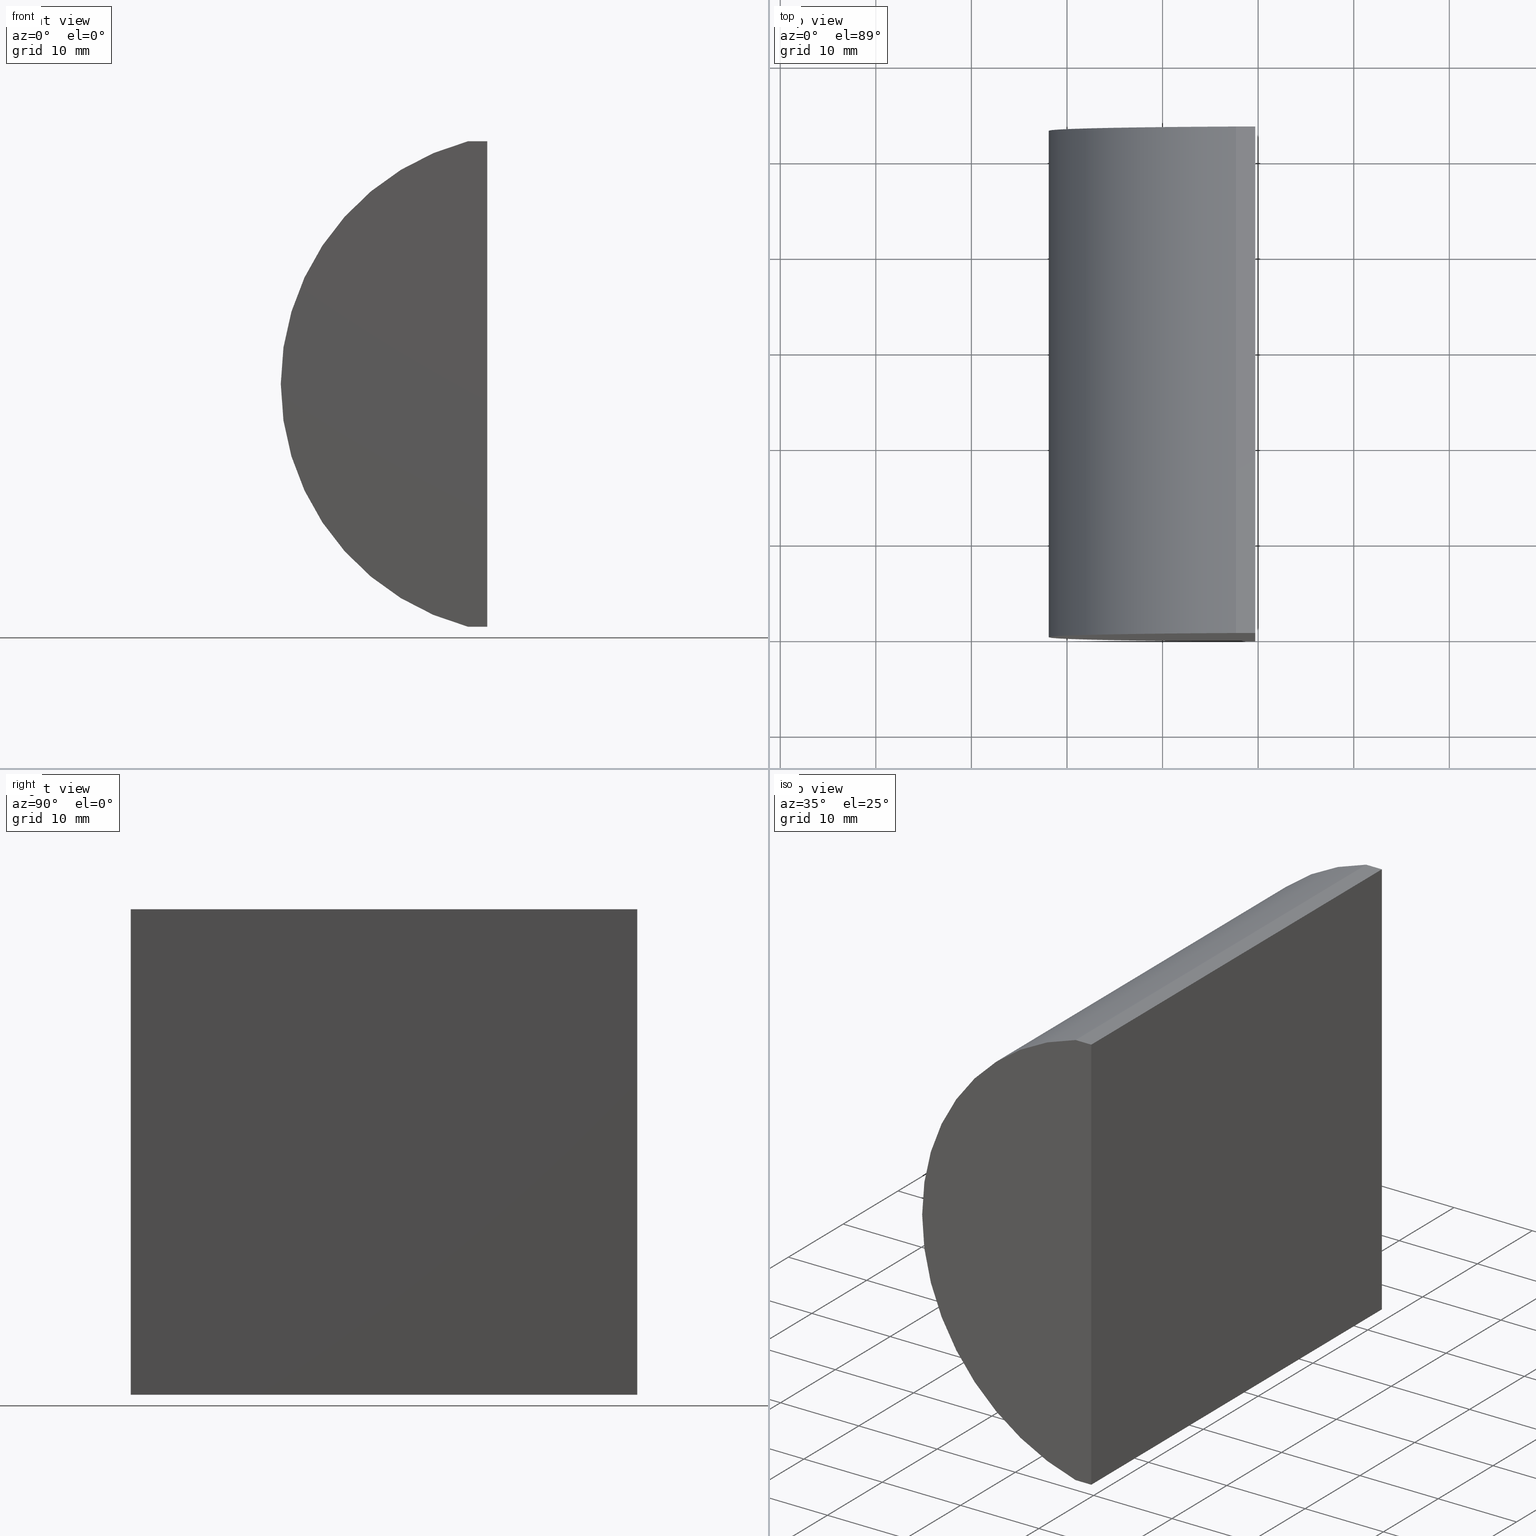
[diagram: canonical four-view strip — front | top / right | iso, engineering-drawing reading convention]
A machine part, canonical four-view strip (front | top / right | iso — engineering-drawing reading convention). The complete STEP part file that produces these views, byte-faithful:
ISO-10303-21;
HEADER;
FILE_DESCRIPTION (( 'STEP AP214' ),
    '1' );
FILE_NAME ('155056.STEP',
    '2019-06-18T07:11:53',
    ( 'user' ),
    ( '΢���й�' ),
    'SwSTEP 2.0',
    'SolidWorks 2016',
    '' );
FILE_SCHEMA (( 'AUTOMOTIVE_DESIGN' ));
ENDSEC;

DATA;
#1 = APPLICATION_PROTOCOL_DEFINITION ( 'draft international standard', 'automotive_design', 1998, #155 ) ;
#2 = DIRECTION ( 'NONE',  ( -1.000000000000000000, -0.0000000000000000000, -0.0000000000000000000 ) ) ;
#3 = ADVANCED_FACE ( 'NONE', ( #30 ), #135, .F. ) ;
#4 = DIRECTION ( 'NONE',  ( -0.0000000000000000000, -1.000000000000000000, -0.0000000000000000000 ) ) ;
#5 = FACE_OUTER_BOUND ( 'NONE', #68, .T. ) ;
#6 = ORIENTED_EDGE ( 'NONE', *, *, #182, .T. ) ;
#7 = VECTOR ( 'NONE', #161, 1000.000000000000000 ) ;
#8 = LINE ( 'NONE', #38, #40 ) ;
#9 = VERTEX_POINT ( 'NONE', #184 ) ;
#10 = VERTEX_POINT ( 'NONE', #106 ) ;
#11 = DIRECTION ( 'NONE',  ( -1.000000000000000000, -0.0000000000000000000, -0.0000000000000000000 ) ) ;
#12 = ADVANCED_BREP_SHAPE_REPRESENTATION ( '155056', ( #17, #132 ), #105 ) ;
#13 = DIRECTION ( 'NONE',  ( 0.0000000000000000000, 1.000000000000000000, 0.0000000000000000000 ) ) ;
#14 = DIRECTION ( 'NONE',  ( 0.0000000000000000000, 0.0000000000000000000, -1.000000000000000000 ) ) ;
#15 = DIRECTION ( 'NONE',  ( 0.0000000000000000000, -0.0000000000000000000, 1.000000000000000000 ) ) ;
#16 = EDGE_CURVE ( 'NONE', #9, #82, #98, .T. ) ;
#17 = MANIFOLD_SOLID_BREP ( '͹̨-����1', #66 ) ;
#18 = DIRECTION ( 'NONE',  ( -3.062657711647045300E-016, -0.0000000000000000000, -1.000000000000000000 ) ) ;
#19 = PRODUCT_DEFINITION_SHAPE ( 'NONE', 'NONE',  #191 ) ;
#20 = APPLICATION_PROTOCOL_DEFINITION ( 'draft international standard', 'automotive_design', 1998, #91 ) ;
#21 = EDGE_CURVE ( 'NONE', #26, #204, #196, .T. ) ;
#22 = MECHANICAL_DESIGN_GEOMETRIC_PRESENTATION_REPRESENTATION (  '', ( #152 ), #147 ) ;
#23 = ADVANCED_FACE ( 'NONE', ( #158 ), #122, .T. ) ;
#24 = EDGE_LOOP ( 'NONE', ( #54, #116, #61, #77 ) ) ;
#25 = ORIENTED_EDGE ( 'NONE', *, *, #27, .T. ) ;
#26 = VERTEX_POINT ( 'NONE', #50 ) ;
#27 = EDGE_CURVE ( 'NONE', #82, #26, #104, .T. ) ;
#28 = CARTESIAN_POINT ( 'NONE',  ( -2.310198878758567900, 53.00000000000000000, 25.39999999999999900 ) ) ;
#29 = VECTOR ( 'NONE', #168, 1000.000000000000000 ) ;
#30 = FACE_OUTER_BOUND ( 'NONE', #24, .T. ) ;
#31 = DIRECTION ( 'NONE',  ( 1.000000000000000000, 0.0000000000000000000, 0.0000000000000000000 ) ) ;
#32 =( NAMED_UNIT ( * ) PLANE_ANGLE_UNIT ( ) SI_UNIT ( $, .RADIAN. ) );
#33 = EDGE_CURVE ( 'NONE', #142, #10, #58, .T. ) ;
#34 = LINE ( 'NONE', #143, #138 ) ;
#35 = EDGE_LOOP ( 'NONE', ( #131, #100, #69, #93 ) ) ;
#36 = DIRECTION ( 'NONE',  ( -0.0000000000000000000, -1.000000000000000000, -0.0000000000000000000 ) ) ;
#37 = PLANE ( 'NONE',  #84 ) ;
#38 = CARTESIAN_POINT ( 'NONE',  ( -2.310198878758567900, 0.0000000000000000000, 25.39999999999999900 ) ) ;
#39 = VERTEX_POINT ( 'NONE', #136 ) ;
#40 = VECTOR ( 'NONE', #86, 1000.000000000000000 ) ;
#41 = PLANE ( 'NONE',  #120 ) ;
#42 = ADVANCED_FACE ( 'NONE', ( #203 ), #41, .F. ) ;
#43 = FACE_OUTER_BOUND ( 'NONE', #97, .T. ) ;
#44 = ORIENTED_EDGE ( 'NONE', *, *, #182, .F. ) ;
#45 = AXIS2_PLACEMENT_3D ( 'NONE', #200, #13, #63 ) ;
#46 = LINE ( 'NONE', #112, #7 ) ;
#47 = SURFACE_STYLE_USAGE ( .BOTH. , #48 ) ;
#48 = SURFACE_SIDE_STYLE ('',( #149 ) ) ;
#49 = FILL_AREA_STYLE_COLOUR ( '', #173 ) ;
#50 = CARTESIAN_POINT ( 'NONE',  ( -0.3047956651487313000, 53.00000000000000000, 25.39999999999999900 ) ) ;
#51 = PLANE ( 'NONE',  #141 ) ;
#52 = PRESENTATION_LAYER_ASSIGNMENT (  '', '', ( #71 ) ) ;
#53 = EDGE_LOOP ( 'NONE', ( #183, #25, #159, #181 ) ) ;
#54 = ORIENTED_EDGE ( 'NONE', *, *, #65, .F. ) ;
#55 = DIRECTION ( 'NONE',  ( 3.062657711647045300E-016, 0.0000000000000000000, 1.000000000000000000 ) ) ;
#56 = CARTESIAN_POINT ( 'NONE',  ( -2.310198878758567900, 53.00000000000000000, 25.39999999999999900 ) ) ;
#57 = UNCERTAINTY_MEASURE_WITH_UNIT (LENGTH_MEASURE( 1.000000000000000100E-005 ), #107, 'distance_accuracy_value', 'NONE');
#58 = LINE ( 'NONE', #121, #96 ) ;
#59 = CARTESIAN_POINT ( 'NONE',  ( 4.355204334851265500, 0.0000000000000000000, 4.286263797015675000E-017 ) ) ;
#60 = LINE ( 'NONE', #28, #85 ) ;
#61 = ORIENTED_EDGE ( 'NONE', *, *, #114, .F. ) ;
#62 = VERTEX_POINT ( 'NONE', #186 ) ;
#63 = DIRECTION ( 'NONE',  ( 0.0000000000000000000, 0.0000000000000000000, 1.000000000000000000 ) ) ;
#64 = DIRECTION ( 'NONE',  ( 0.0000000000000000000, 0.0000000000000000000, 1.000000000000000000 ) ) ;
#65 = EDGE_CURVE ( 'NONE', #10, #39, #81, .T. ) ;
#66 = CLOSED_SHELL ( 'NONE', ( #23, #128, #42, #133, #79, #3 ) ) ;
#67 = CARTESIAN_POINT ( 'NONE',  ( 4.355204334851265500, 53.00000000000000000, 4.286263797015675000E-017 ) ) ;
#68 = EDGE_LOOP ( 'NONE', ( #109, #148, #111, #118 ) ) ;
#69 = ORIENTED_EDGE ( 'NONE', *, *, #16, .F. ) ;
#70 = UNCERTAINTY_MEASURE_WITH_UNIT (LENGTH_MEASURE( 1.000000000000000100E-005 ), #137, 'distance_accuracy_value', 'NONE');
#71 = STYLED_ITEM ( 'NONE', ( #129 ), #17 ) ;
#72 = PRODUCT_CONTEXT ( 'NONE', #91, 'mechanical' ) ;
#73 = DIRECTION ( 'NONE',  ( -0.0000000000000000000, -1.000000000000000000, -0.0000000000000000000 ) ) ;
#74 = ORIENTED_EDGE ( 'NONE', *, *, #201, .F. ) ;
#75 = CARTESIAN_POINT ( 'NONE',  ( -0.3047956651487468400, 53.00000000000000000, -25.39999999999999900 ) ) ;
#76 = DIRECTION ( 'NONE',  ( 0.0000000000000000000, 0.0000000000000000000, 1.000000000000000000 ) ) ;
#77 = ORIENTED_EDGE ( 'NONE', *, *, #130, .F. ) ;
#78 = CARTESIAN_POINT ( 'NONE',  ( 4.355204334851265500, 53.00000000000000000, 4.286263797015675000E-017 ) ) ;
#79 = ADVANCED_FACE ( 'NONE', ( #162 ), #37, .T. ) ;
#80 = CARTESIAN_POINT ( 'NONE',  ( -2.310198878758607000, 53.00000000000000000, -25.39999999999999900 ) ) ;
#81 = CIRCLE ( 'NONE', #185, 26.26000000000001200 ) ;
#82 = VERTEX_POINT ( 'NONE', #56 ) ;
#83 = DIRECTION ( 'NONE',  ( 0.0000000000000000000, 1.000000000000000000, 0.0000000000000000000 ) ) ;
#84 = AXIS2_PLACEMENT_3D ( 'NONE', #78, #113, #15 ) ;
#85 = VECTOR ( 'NONE', #73, 1000.000000000000000 ) ;
#86 = DIRECTION ( 'NONE',  ( 1.000000000000000000, 0.0000000000000000000, 0.0000000000000000000 ) ) ;
#87 = CARTESIAN_POINT ( 'NONE',  ( -0.3047956651487468400, 53.00000000000000000, -25.39999999999999900 ) ) ;
#88 = FILL_AREA_STYLE ('',( #49 ) ) ;
#89 = VECTOR ( 'NONE', #99, 1000.000000000000000 ) ;
#90 = EDGE_LOOP ( 'NONE', ( #187, #74, #198, #6 ) ) ;
#91 = APPLICATION_CONTEXT ( 'automotive_design' ) ;
#92 = DIRECTION ( 'NONE',  ( -1.000000000000000000, 0.0000000000000000000, 3.062657711647045300E-016 ) ) ;
#93 = ORIENTED_EDGE ( 'NONE', *, *, #170, .T. ) ;
#94 = LINE ( 'NONE', #169, #89 ) ;
#95 = DIRECTION ( 'NONE',  ( 1.000000000000000000, 0.0000000000000000000, 0.0000000000000000000 ) ) ;
#96 = VECTOR ( 'NONE', #11, 1000.000000000000000 ) ;
#97 = EDGE_LOOP ( 'NONE', ( #197, #44, #139, #199 ) ) ;
#98 = CIRCLE ( 'NONE', #45, 26.26000000000001200 ) ;
#99 = DIRECTION ( 'NONE',  ( -3.062657711647045300E-016, -0.0000000000000000000, -1.000000000000000000 ) ) ;
#100 = ORIENTED_EDGE ( 'NONE', *, *, #189, .F. ) ;
#101 =( NAMED_UNIT ( * ) SI_UNIT ( $, .STERADIAN. ) SOLID_ANGLE_UNIT ( ) );
#102 =( NAMED_UNIT ( * ) SI_UNIT ( $, .STERADIAN. ) SOLID_ANGLE_UNIT ( ) );
#103 = CARTESIAN_POINT ( 'NONE',  ( -0.3047956651487468400, 0.0000000000000000000, -25.39999999999999900 ) ) ;
#104 = LINE ( 'NONE', #157, #172 ) ;
#105 =( GEOMETRIC_REPRESENTATION_CONTEXT ( 3 ) GLOBAL_UNCERTAINTY_ASSIGNED_CONTEXT ( ( #160 ) ) GLOBAL_UNIT_ASSIGNED_CONTEXT ( ( #176, #177, #101 ) ) REPRESENTATION_CONTEXT ( 'NONE', 'WORKASPACE' ) );
#106 = CARTESIAN_POINT ( 'NONE',  ( -2.310198878758607000, 0.0000000000000000000, -25.39999999999999900 ) ) ;
#107 =( LENGTH_UNIT ( ) NAMED_UNIT ( * ) SI_UNIT ( .MILLI., .METRE. ) );
#108 = FILL_AREA_STYLE_COLOUR ( '', #179 ) ;
#109 = ORIENTED_EDGE ( 'NONE', *, *, #33, .T. ) ;
#110 = CARTESIAN_POINT ( 'NONE',  ( -0.3047956651487468400, 53.00000000000000000, -25.39999999999999900 ) ) ;
#111 = ORIENTED_EDGE ( 'NONE', *, *, #119, .F. ) ;
#112 = CARTESIAN_POINT ( 'NONE',  ( -0.3047956651487468400, 53.00000000000000000, -25.39999999999999900 ) ) ;
#113 = DIRECTION ( 'NONE',  ( 0.0000000000000000000, 1.000000000000000000, 0.0000000000000000000 ) ) ;
#114 = EDGE_CURVE ( 'NONE', #62, #142, #94, .T. ) ;
#115 = PRODUCT_DEFINITION_FORMATION_WITH_SPECIFIED_SOURCE ( '�κ�', '', #190, .NOT_KNOWN. ) ;
#116 = ORIENTED_EDGE ( 'NONE', *, *, #33, .F. ) ;
#117 = VECTOR ( 'NONE', #18, 1000.000000000000000 ) ;
#118 = ORIENTED_EDGE ( 'NONE', *, *, #201, .T. ) ;
#119 = EDGE_CURVE ( 'NONE', #204, #9, #34, .T. ) ;
#120 = AXIS2_PLACEMENT_3D ( 'NONE', #87, #92, #55 ) ;
#121 = CARTESIAN_POINT ( 'NONE',  ( -2.310198878758607000, 0.0000000000000000000, -25.39999999999999900 ) ) ;
#122 = CYLINDRICAL_SURFACE ( 'NONE', #171, 26.26000000000001200 ) ;
#123 =( NAMED_UNIT ( * ) PLANE_ANGLE_UNIT ( ) SI_UNIT ( $, .RADIAN. ) );
#124 = SHAPE_DEFINITION_REPRESENTATION ( #19, #12 ) ;
#125 = PRESENTATION_STYLE_ASSIGNMENT (( #164 ) ) ;
#126 = FILL_AREA_STYLE ('',( #108 ) ) ;
#127 = CARTESIAN_POINT ( 'NONE',  ( -0.3047956651487313000, 53.00000000000000000, 25.39999999999999900 ) ) ;
#128 = ADVANCED_FACE ( 'NONE', ( #43 ), #51, .F. ) ;
#129 = PRESENTATION_STYLE_ASSIGNMENT (( #47 ) ) ;
#130 = EDGE_CURVE ( 'NONE', #39, #62, #8, .T. ) ;
#131 = ORIENTED_EDGE ( 'NONE', *, *, #65, .T. ) ;
#132 = AXIS2_PLACEMENT_3D ( 'NONE', #175, #140, #31 ) ;
#133 = ADVANCED_FACE ( 'NONE', ( #5 ), #165, .F. ) ;
#134 = DIRECTION ( 'NONE',  ( 0.0000000000000000000, 0.0000000000000000000, -1.000000000000000000 ) ) ;
#135 = PLANE ( 'NONE',  #174 ) ;
#136 = CARTESIAN_POINT ( 'NONE',  ( -2.310198878758567900, 0.0000000000000000000, 25.39999999999999900 ) ) ;
#137 =( LENGTH_UNIT ( ) NAMED_UNIT ( * ) SI_UNIT ( .MILLI., .METRE. ) );
#138 = VECTOR ( 'NONE', #2, 1000.000000000000000 ) ;
#139 = ORIENTED_EDGE ( 'NONE', *, *, #27, .F. ) ;
#140 = DIRECTION ( 'NONE',  ( 0.0000000000000000000, 0.0000000000000000000, 1.000000000000000000 ) ) ;
#141 = AXIS2_PLACEMENT_3D ( 'NONE', #188, #14, #144 ) ;
#142 = VERTEX_POINT ( 'NONE', #103 ) ;
#143 = CARTESIAN_POINT ( 'NONE',  ( -2.310198878758607000, 53.00000000000000000, -25.39999999999999900 ) ) ;
#144 = DIRECTION ( 'NONE',  ( -1.000000000000000000, 0.0000000000000000000, -0.0000000000000000000 ) ) ;
#145 = CARTESIAN_POINT ( 'NONE',  ( 4.355204334851265500, 0.0000000000000000000, 4.286263797015675000E-017 ) ) ;
#146 =( GEOMETRIC_REPRESENTATION_CONTEXT ( 3 ) GLOBAL_UNCERTAINTY_ASSIGNED_CONTEXT ( ( #57 ) ) GLOBAL_UNIT_ASSIGNED_CONTEXT ( ( #107, #32, #102 ) ) REPRESENTATION_CONTEXT ( 'NONE', 'WORKASPACE' ) );
#147 =( GEOMETRIC_REPRESENTATION_CONTEXT ( 3 ) GLOBAL_UNCERTAINTY_ASSIGNED_CONTEXT ( ( #70 ) ) GLOBAL_UNIT_ASSIGNED_CONTEXT ( ( #137, #123, #163 ) ) REPRESENTATION_CONTEXT ( 'NONE', 'WORKASPACE' ) );
#148 = ORIENTED_EDGE ( 'NONE', *, *, #170, .F. ) ;
#149 = SURFACE_STYLE_FILL_AREA ( #126 ) ;
#150 = CARTESIAN_POINT ( 'NONE',  ( -2.310198878758607000, 53.00000000000000000, -25.39999999999999900 ) ) ;
#151 = LINE ( 'NONE', #127, #29 ) ;
#152 = STYLED_ITEM ( 'NONE', ( #125 ), #12 ) ;
#153 = PRODUCT_DEFINITION_CONTEXT ( 'detailed design', #155, 'design' ) ;
#154 = SURFACE_SIDE_STYLE ('',( #195 ) ) ;
#155 = APPLICATION_CONTEXT ( 'automotive_design' ) ;
#156 = VECTOR ( 'NONE', #36, 1000.000000000000000 ) ;
#157 = CARTESIAN_POINT ( 'NONE',  ( -2.310198878758567900, 53.00000000000000000, 25.39999999999999900 ) ) ;
#158 = FACE_OUTER_BOUND ( 'NONE', #35, .T. ) ;
#159 = ORIENTED_EDGE ( 'NONE', *, *, #21, .T. ) ;
#160 = UNCERTAINTY_MEASURE_WITH_UNIT (LENGTH_MEASURE( 1.000000000000000100E-005 ), #176, 'distance_accuracy_value', 'NONE');
#161 = DIRECTION ( 'NONE',  ( -0.0000000000000000000, -1.000000000000000000, -0.0000000000000000000 ) ) ;
#162 = FACE_OUTER_BOUND ( 'NONE', #53, .T. ) ;
#163 =( NAMED_UNIT ( * ) SI_UNIT ( $, .STERADIAN. ) SOLID_ANGLE_UNIT ( ) );
#164 = SURFACE_STYLE_USAGE ( .BOTH. , #154 ) ;
#165 = PLANE ( 'NONE',  #178 ) ;
#166 = DIRECTION ( 'NONE',  ( 1.000000000000000000, 0.0000000000000000000, -0.0000000000000000000 ) ) ;
#167 = PRODUCT_RELATED_PRODUCT_CATEGORY ( 'part', '', ( #190 ) ) ;
#168 = DIRECTION ( 'NONE',  ( -0.0000000000000000000, -1.000000000000000000, -0.0000000000000000000 ) ) ;
#169 = CARTESIAN_POINT ( 'NONE',  ( -0.3047956651487468400, 0.0000000000000000000, -25.39999999999999900 ) ) ;
#170 = EDGE_CURVE ( 'NONE', #9, #10, #192, .T. ) ;
#171 = AXIS2_PLACEMENT_3D ( 'NONE', #67, #4, #134 ) ;
#172 = VECTOR ( 'NONE', #95, 1000.000000000000000 ) ;
#173 = COLOUR_RGB ( '',1.000000000000000000, 1.000000000000000000, 1.000000000000000000 ) ;
#174 = AXIS2_PLACEMENT_3D ( 'NONE', #59, #193, #194 ) ;
#175 = CARTESIAN_POINT ( 'NONE',  ( 0.0000000000000000000, 0.0000000000000000000, 0.0000000000000000000 ) ) ;
#176 =( LENGTH_UNIT ( ) NAMED_UNIT ( * ) SI_UNIT ( .MILLI., .METRE. ) );
#177 =( NAMED_UNIT ( * ) PLANE_ANGLE_UNIT ( ) SI_UNIT ( $, .RADIAN. ) );
#178 = AXIS2_PLACEMENT_3D ( 'NONE', #80, #76, #166 ) ;
#179 = COLOUR_RGB ( '',1.000000000000000000, 1.000000000000000000, 1.000000000000000000 ) ;
#180 = MECHANICAL_DESIGN_GEOMETRIC_PRESENTATION_REPRESENTATION (  '', ( #71 ), #146 ) ;
#181 = ORIENTED_EDGE ( 'NONE', *, *, #119, .T. ) ;
#182 = EDGE_CURVE ( 'NONE', #26, #62, #151, .T. ) ;
#183 = ORIENTED_EDGE ( 'NONE', *, *, #16, .T. ) ;
#184 = CARTESIAN_POINT ( 'NONE',  ( -2.310198878758607000, 53.00000000000000000, -25.39999999999999900 ) ) ;
#185 = AXIS2_PLACEMENT_3D ( 'NONE', #145, #83, #64 ) ;
#186 = CARTESIAN_POINT ( 'NONE',  ( -0.3047956651487313000, 0.0000000000000000000, 25.39999999999999900 ) ) ;
#187 = ORIENTED_EDGE ( 'NONE', *, *, #114, .T. ) ;
#188 = CARTESIAN_POINT ( 'NONE',  ( -2.310198878758567900, 53.00000000000000000, 25.39999999999999900 ) ) ;
#189 = EDGE_CURVE ( 'NONE', #82, #39, #60, .T. ) ;
#190 = PRODUCT ( '155056', '155056', '', ( #72 ) ) ;
#191 = PRODUCT_DEFINITION ( 'δ֪', '', #115, #153 ) ;
#192 = LINE ( 'NONE', #150, #156 ) ;
#193 = DIRECTION ( 'NONE',  ( 0.0000000000000000000, 1.000000000000000000, 0.0000000000000000000 ) ) ;
#194 = DIRECTION ( 'NONE',  ( 0.0000000000000000000, -0.0000000000000000000, 1.000000000000000000 ) ) ;
#195 = SURFACE_STYLE_FILL_AREA ( #88 ) ;
#196 = LINE ( 'NONE', #75, #117 ) ;
#197 = ORIENTED_EDGE ( 'NONE', *, *, #130, .T. ) ;
#198 = ORIENTED_EDGE ( 'NONE', *, *, #21, .F. ) ;
#199 = ORIENTED_EDGE ( 'NONE', *, *, #189, .T. ) ;
#200 = CARTESIAN_POINT ( 'NONE',  ( 4.355204334851265500, 53.00000000000000000, 4.286263797015675000E-017 ) ) ;
#201 = EDGE_CURVE ( 'NONE', #204, #142, #46, .T. ) ;
#202 = PRESENTATION_LAYER_ASSIGNMENT (  '', '', ( #152 ) ) ;
#203 = FACE_OUTER_BOUND ( 'NONE', #90, .T. ) ;
#204 = VERTEX_POINT ( 'NONE', #110 ) ;
ENDSEC;
END-ISO-10303-21;
